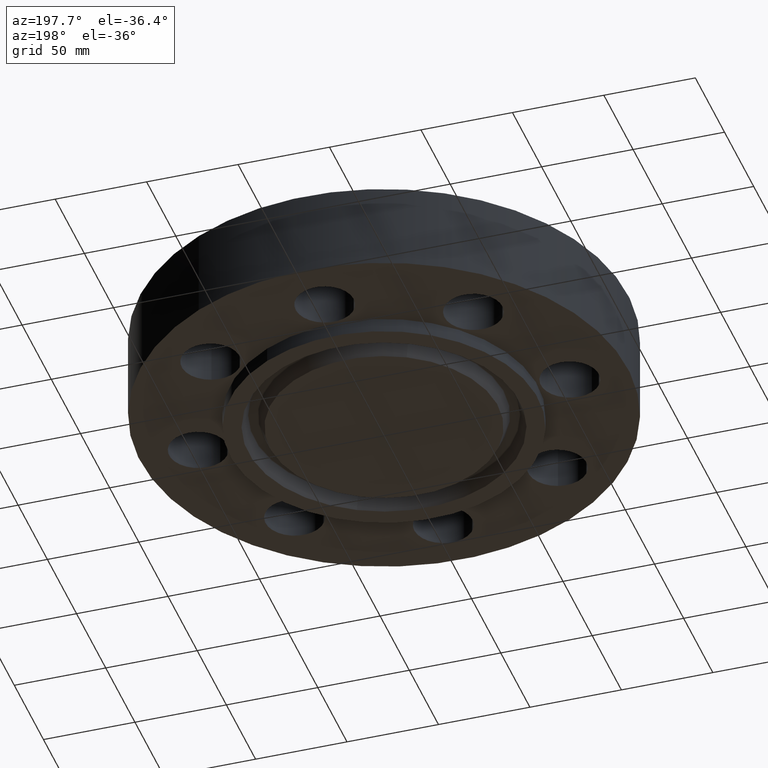
[diagram: clean part render]
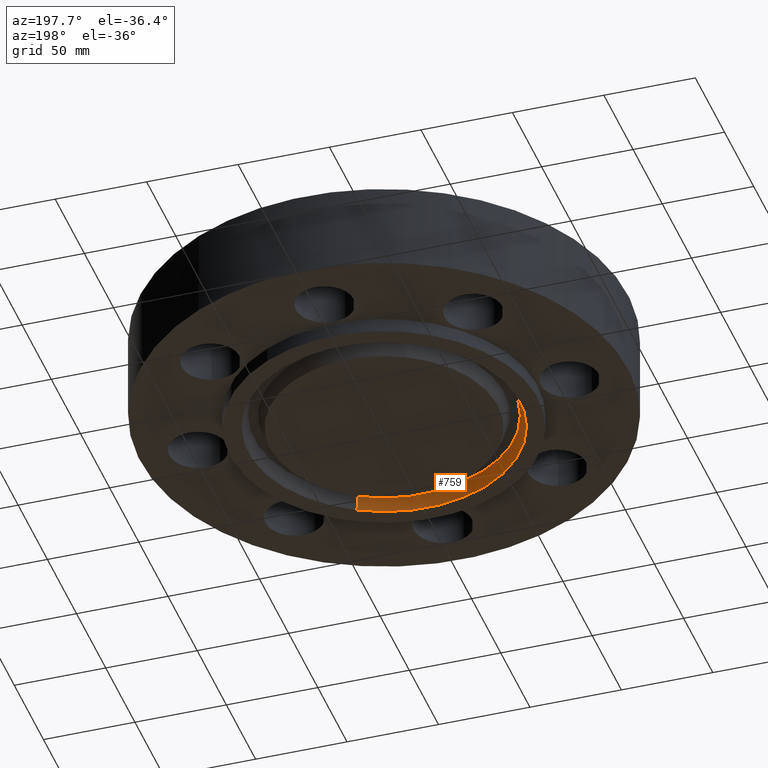
[diagram: same view with one face highlighted and labeled with its STEP entity id]
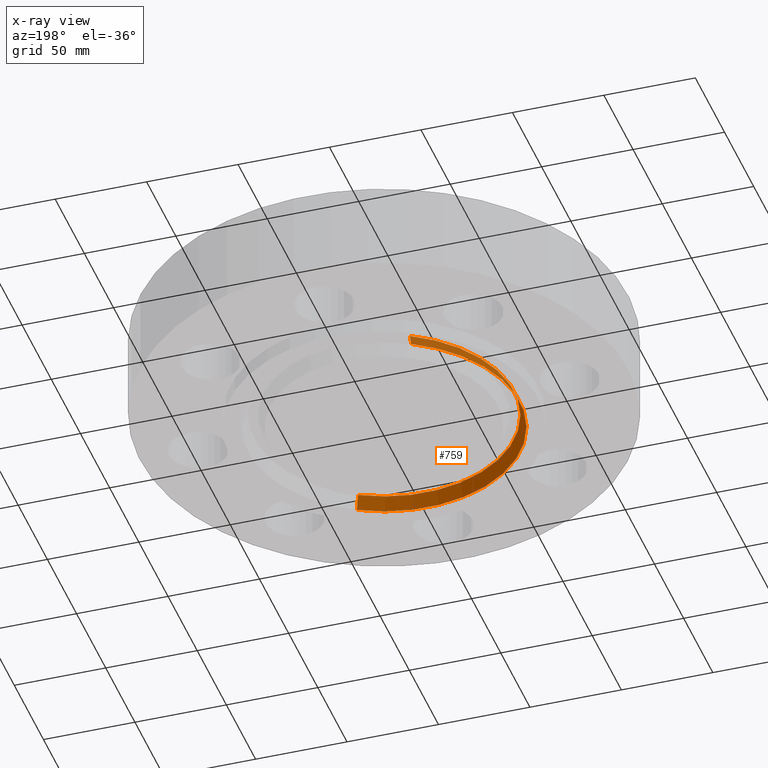
[diagram: x-ray of the same camera — body ghosted, the highlighted face saturated]
A machine part, auxiliary view. The second image highlights one B-rep face of the part: STEP entity #759.
The next image is the same camera in x-ray: the body ghosted, the highlighted face saturated — about 0% of this face is hidden behind the body in this view.
In plain terms, the highlighted conical surface has half-angle 23 deg.
Its self-contained STEP definition (entity closure, byte-faithful):
#79=AXIS2_PLACEMENT_3D('Circle Axis2P3D',#77,#78,$) ;
#705=AXIS2_PLACEMENT_3D('Circle Axis2P3D',#703,#704,$) ;
#741=AXIS2_PLACEMENT_3D('Cone Axis2P3D',#738,#739,#740) ;
#77=CARTESIAN_POINT('Axis2P3D Location',(4.19611851827E-016,2.79741234551E-016,-0.313000000001)) ;
#81=CARTESIAN_POINT('Vertex',(1.40088142381,-2.56429624585,-0.313000000001)) ;
#83=CARTESIAN_POINT('Vertex',(-1.40088142381,2.56429624585,-0.313000000001)) ;
#703=CARTESIAN_POINT('Axis2P3D Location',(0.,0.,-0.0188873350169)) ;
#707=CARTESIAN_POINT('Vertex',(-1.34102830021,2.45473583801,-0.0188873350169)) ;
#709=CARTESIAN_POINT('Vertex',(1.34102830021,-2.45473583801,-0.0188873350169)) ;
#738=CARTESIAN_POINT('Axis2P3D Location',(0.,0.,-0.0188873350169)) ;
#743=CARTESIAN_POINT('Line Origine',(-1.37095486201,2.50951604193,-0.165943667509)) ;
#748=CARTESIAN_POINT('Line Origine',(1.37095486201,-2.50951604193,-0.165943667509)) ;
#78=DIRECTION('Axis2P3D Direction',(0.,0.,-0.0393700787402)) ;
#704=DIRECTION('Axis2P3D Direction',(0.,0.,0.0393700787402)) ;
#739=DIRECTION('Axis2P3D Direction',(-0.,-0.,-0.0393700787402)) ;
#740=DIRECTION('Axis2P3D XDirection',(-0.0188750212049,0.0345504945626,0.)) ;
#744=DIRECTION('Vector Direction',(-0.00737505833565,0.0134999537303,-0.0362403485611)) ;
#749=DIRECTION('Vector Direction',(0.00737505833565,-0.0134999537303,-0.0362403485611)) ;
#745=VECTOR('Line Direction',#744,0.0393700787402) ;
#750=VECTOR('Line Direction',#749,0.0393700787402) ;
#754=ORIENTED_EDGE('',*,*,#85,.T.) ;
#755=ORIENTED_EDGE('',*,*,#747,.T.) ;
#756=ORIENTED_EDGE('',*,*,#711,.T.) ;
#757=ORIENTED_EDGE('',*,*,#752,.F.) ;
#759=ADVANCED_FACE('PartBody',(#758),#742,.F.) ;
#80=CIRCLE('generated circle',#79,2.92200000001) ;
#706=CIRCLE('generated circle',#705,2.7971565806) ;
#742=CONICAL_SURFACE('Cone',#741,2.7971565806,0.401425727959) ;
#85=EDGE_CURVE('',#82,#84,#80,.T.) ;
#711=EDGE_CURVE('',#708,#710,#706,.T.) ;
#747=EDGE_CURVE('',#84,#708,#746,.F.) ;
#752=EDGE_CURVE('',#82,#710,#751,.F.) ;
#753=EDGE_LOOP('',(#754,#755,#756,#757)) ;
#758=FACE_OUTER_BOUND('',#753,.T.) ;
#746=LINE('Line',#743,#745) ;
#751=LINE('Line',#748,#750) ;
#82=VERTEX_POINT('',#81) ;
#84=VERTEX_POINT('',#83) ;
#708=VERTEX_POINT('',#707) ;
#710=VERTEX_POINT('',#709) ;